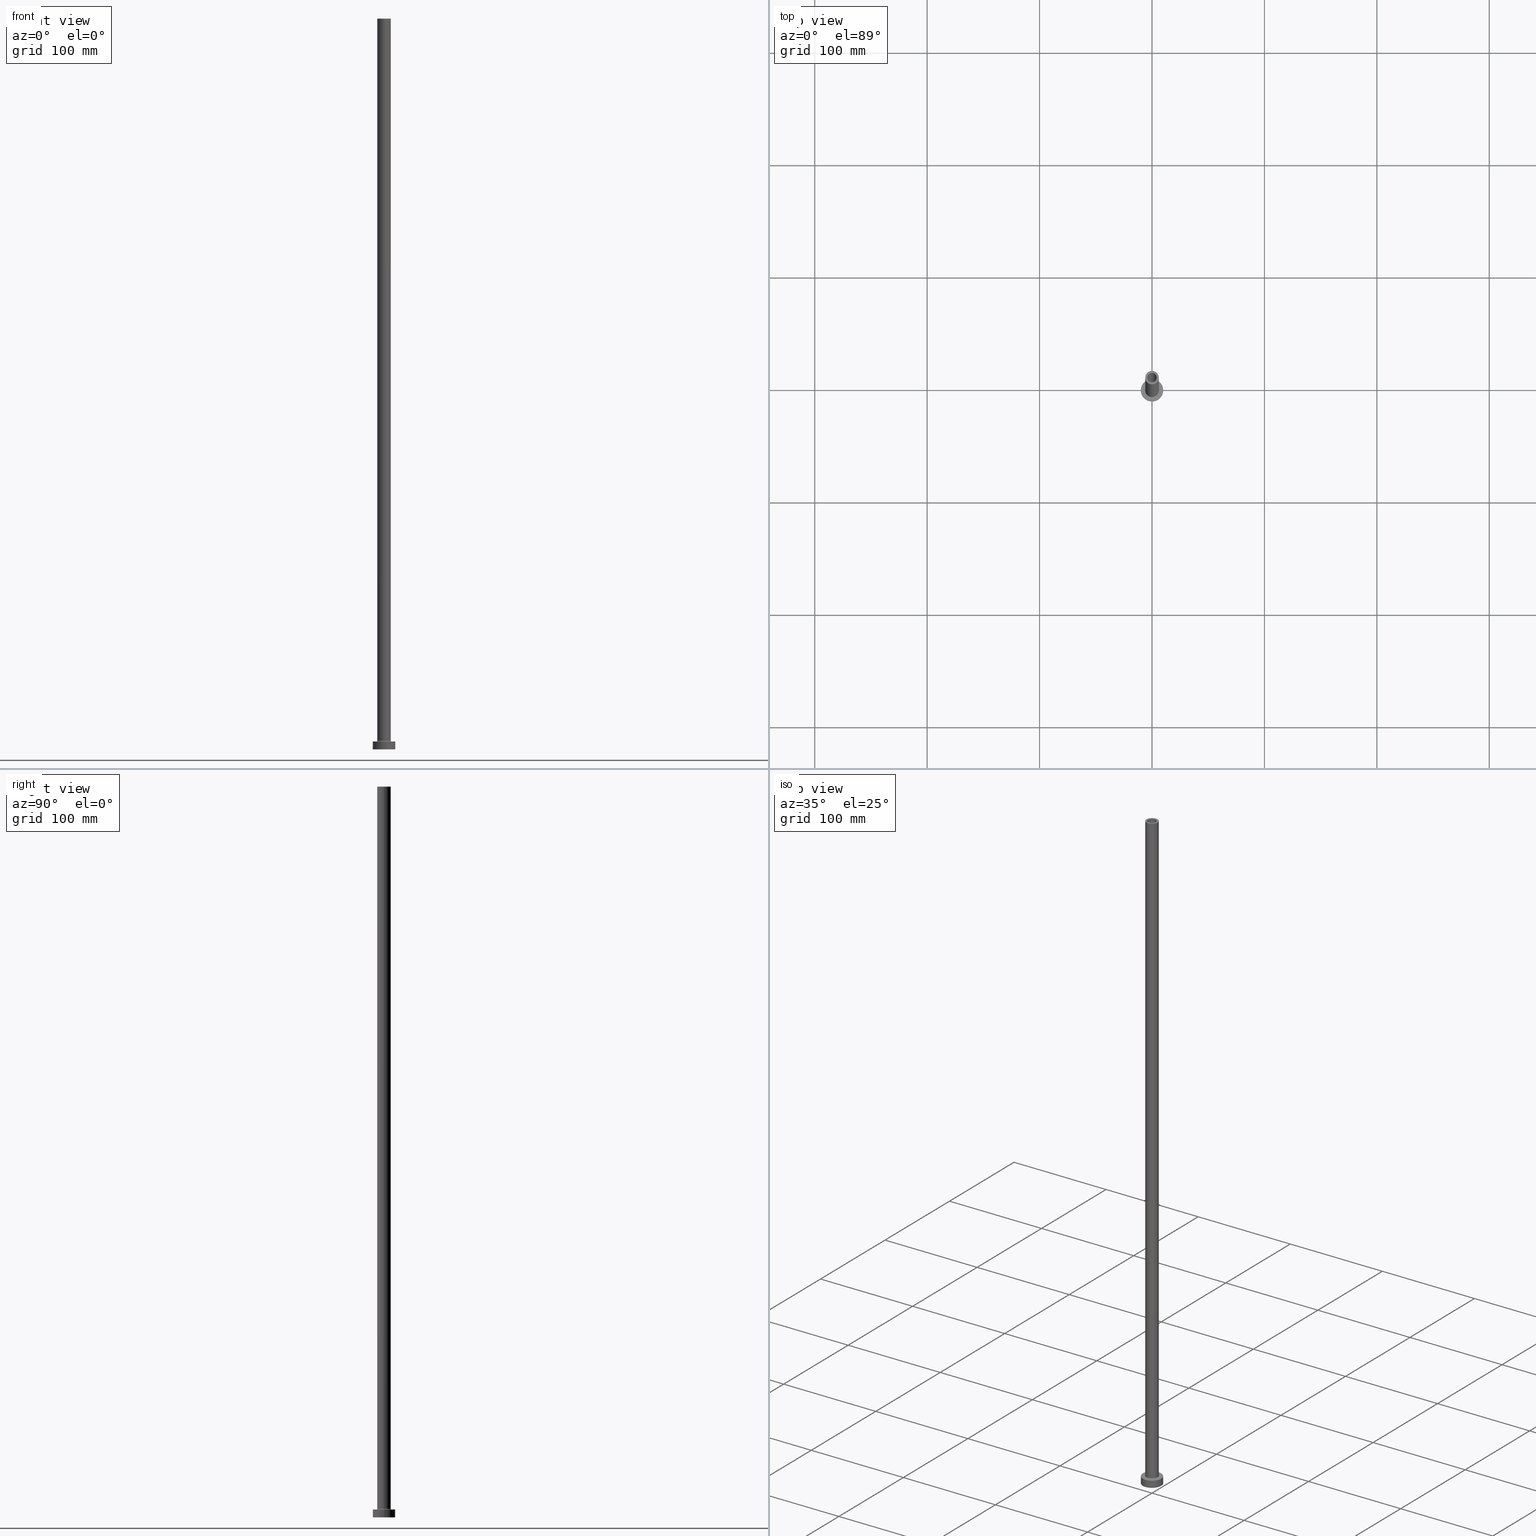
[diagram: canonical four-view strip — front | top / right | iso, engineering-drawing reading convention]
A machine part, canonical four-view strip (front | top / right | iso — engineering-drawing reading convention). The complete STEP part file that produces these views, byte-faithful:
ISO-10303-21;
HEADER;
FILE_DESCRIPTION (( 'STEP AP203' ),
    '1' );
FILE_NAME ('999e.STEP',
    '2023-02-13T11:54:58',
    ( '' ),
    ( '' ),
    'SwSTEP 2.0',
    'SolidWorks 2019',
    '' );
FILE_SCHEMA (( 'CONFIG_CONTROL_DESIGN' ));
ENDSEC;

DATA;
#1 = CIRCLE ( 'NONE', #147, 6.000000000000000888 ) ;
#2 = ORIENTED_EDGE ( 'NONE', *, *, #4, .F. ) ;
#3 = PERSON_AND_ORGANIZATION_ROLE ( 'design_supplier' ) ;
#4 = EDGE_CURVE ( 'NONE', #200, #353, #458, .T. ) ;
#5 = CARTESIAN_POINT ( 'NONE',  ( 0.000000000000000000, 0.000000000000000000, 7.700000000000040146 ) ) ;
#6 = CIRCLE ( 'NONE', #157, 10.00000000000000000 ) ;
#7 = CARTESIAN_POINT ( 'NONE',  ( -4.250000000000000000, 0.000000000000000000, 605.0000000000000000 ) ) ;
#8 = DIRECTION ( 'NONE',  ( 0.000000000000000000, 0.000000000000000000, 1.000000000000000000 ) ) ;
#9 = DIRECTION ( 'NONE',  ( 1.000000000000000000, 0.000000000000000000, 0.000000000000000000 ) ) ;
#10 = PERSON_AND_ORGANIZATION ( #359, #159 ) ;
#11 = DIRECTION ( 'NONE',  ( -1.000000000000000000, 0.000000000000000000, 0.000000000000000000 ) ) ;
#12 = AXIS2_PLACEMENT_3D ( 'NONE', #153, #115, #151 ) ;
#13 = PERSON_AND_ORGANIZATION ( #359, #159 ) ;
#14 = DIRECTION ( 'NONE',  ( 1.000000000000000000, 0.000000000000000000, 0.000000000000000000 ) ) ;
#15 = DATE_TIME_ROLE ( 'classification_date' ) ;
#16 = DIRECTION ( 'NONE',  ( -0.000000000000000000, -0.000000000000000000, -1.000000000000000000 ) ) ;
#17 = CC_DESIGN_DATE_AND_TIME_ASSIGNMENT ( #107, #251, ( #267 ) ) ;
#18 = EDGE_LOOP ( 'NONE', ( #308, #123 ) ) ;
#19 = CYLINDRICAL_SURFACE ( 'NONE', #386, 6.000000000000000888 ) ;
#20 = ORIENTED_EDGE ( 'NONE', *, *, #439, .F. ) ;
#21 = CIRCLE ( 'NONE', #255, 4.250000000000000000 ) ;
#22 = DIRECTION ( 'NONE',  ( 1.000000000000000000, 0.000000000000000000, 0.000000000000000000 ) ) ;
#23 = ORIENTED_EDGE ( 'NONE', *, *, #114, .T. ) ;
#24 = CIRCLE ( 'NONE', #395, 6.000000000000000888 ) ;
#25 = DIRECTION ( 'NONE',  ( 1.000000000000000000, 0.000000000000000000, 0.000000000000000000 ) ) ;
#26 = ORIENTED_EDGE ( 'NONE', *, *, #459, .T. ) ;
#27 = EDGE_CURVE ( 'NONE', #417, #97, #300, .T. ) ;
#28 = LINE ( 'NONE', #138, #83 ) ;
#29 = ORIENTED_EDGE ( 'NONE', *, *, #289, .F. ) ;
#30 = ADVANCED_BREP_SHAPE_REPRESENTATION ( '999e', ( #340, #204 ), #167 ) ;
#31 = VECTOR ( 'NONE', #162, 1000.000000000000000 ) ;
#32 = DIRECTION ( 'NONE',  ( 1.000000000000000000, 0.000000000000000000, 0.000000000000000000 ) ) ;
#33 = ORIENTED_EDGE ( 'NONE', *, *, #231, .T. ) ;
#34 = PERSON_AND_ORGANIZATION ( #359, #159 ) ;
#35 = ORIENTED_EDGE ( 'NONE', *, *, #47, .T. ) ;
#36 = APPROVAL_DATE_TIME ( #176, #362 ) ;
#37 = ORIENTED_EDGE ( 'NONE', *, *, #413, .F. ) ;
#38 = CIRCLE ( 'NONE', #428, 6.700000000000001066 ) ;
#39 = ORIENTED_EDGE ( 'NONE', *, *, #156, .F. ) ;
#40 = CLOSED_SHELL ( 'NONE', ( #254, #420, #128, #381, #312, #350, #64, #388, #278, #87, #285, #103, #365, #434 ) ) ;
#41 = EDGE_CURVE ( 'NONE', #56, #166, #297, .T. ) ;
#42 = DIRECTION ( 'NONE',  ( 1.000000000000000000, 0.000000000000000000, 0.000000000000000000 ) ) ;
#43 = DIRECTION ( 'NONE',  ( -1.000000000000000000, 0.000000000000000000, 0.000000000000000000 ) ) ;
#44 = AXIS2_PLACEMENT_3D ( 'NONE', #433, #332, #9 ) ;
#45 = CYLINDRICAL_SURFACE ( 'NONE', #432, 4.400000000000000355 ) ;
#46 = DIRECTION ( 'NONE',  ( 0.000000000000000000, 0.000000000000000000, 1.000000000000000000 ) ) ;
#47 = EDGE_CURVE ( 'NONE', #166, #56, #21, .T. ) ;
#48 = AXIS2_PLACEMENT_3D ( 'NONE', #391, #101, #394 ) ;
#49 = DIRECTION ( 'NONE',  ( 0.000000000000000000, 0.000000000000000000, -1.000000000000000000 ) ) ;
#50 = PERSON_AND_ORGANIZATION ( #359, #159 ) ;
#51 = DIRECTION ( 'NONE',  ( 0.000000000000000000, 0.000000000000000000, 1.000000000000000000 ) ) ;
#52 = DESIGN_CONTEXT ( 'detailed design', #239, 'design' ) ;
#53 = AXIS2_PLACEMENT_3D ( 'NONE', #117, #435, #328 ) ;
#54 = EDGE_CURVE ( 'NONE', #226, #200, #6, .T. ) ;
#55 = CYLINDRICAL_SURFACE ( 'NONE', #318, 10.00000000000000000 ) ;
#56 = VERTEX_POINT ( 'NONE', #282 ) ;
#57 = FACE_OUTER_BOUND ( 'NONE', #338, .T. ) ;
#58 = EDGE_LOOP ( 'NONE', ( #39, #382, #314, #74 ) ) ;
#59 = CARTESIAN_POINT ( 'NONE',  ( 0.000000000000000000, 0.000000000000000000, 7.000000000000000000 ) ) ;
#60 = ORIENTED_EDGE ( 'NONE', *, *, #426, .F. ) ;
#61 = CIRCLE ( 'NONE', #329, 0.7000000000000000666 ) ;
#62 = CARTESIAN_POINT ( 'NONE',  ( 6.000000000000000888, 7.347880794884120722E-16, 7.700000000000040146 ) ) ;
#63 = EDGE_LOOP ( 'NONE', ( #379, #390, #33, #29 ) ) ;
#64 = ADVANCED_FACE ( 'NONE', ( #423, #358 ), #102, .T. ) ;
#65 = EDGE_LOOP ( 'NONE', ( #317, #246, #70, #275 ) ) ;
#66 = CALENDAR_DATE ( 2023, 13, 2 ) ;
#67 = VERTEX_POINT ( 'NONE', #243 ) ;
#68 = AXIS2_PLACEMENT_3D ( 'NONE', #5, #46, #217 ) ;
#69 = DIRECTION ( 'NONE',  ( 0.000000000000000000, 0.000000000000000000, 1.000000000000000000 ) ) ;
#70 = ORIENTED_EDGE ( 'NONE', *, *, #295, .F. ) ;
#71 = MECHANICAL_CONTEXT ( 'NONE', #125, 'mechanical' ) ;
#72 = CARTESIAN_POINT ( 'NONE',  ( 0.000000000000000000, 0.000000000000000000, 605.0000000000000000 ) ) ;
#73 = CARTESIAN_POINT ( 'NONE',  ( 0.000000000000000000, 0.000000000000000000, 617.4450793488832687 ) ) ;
#74 = ORIENTED_EDGE ( 'NONE', *, *, #231, .F. ) ;
#75 = CC_DESIGN_PERSON_AND_ORGANIZATION_ASSIGNMENT ( #333, #3, ( #165 ) ) ;
#76 = FACE_OUTER_BOUND ( 'NONE', #58, .T. ) ;
#77 = DIRECTION ( 'NONE',  ( 1.000000000000000000, 0.000000000000000000, 0.000000000000000000 ) ) ;
#78 = CIRCLE ( 'NONE', #343, 6.000000000000000888 ) ;
#79 = EDGE_CURVE ( 'NONE', #206, #195, #105, .T. ) ;
#80 = CARTESIAN_POINT ( 'NONE',  ( 10.00000000000000000, 1.224646799147353256E-15, 7.000000000000000000 ) ) ;
#81 = VECTOR ( 'NONE', #421, 1000.000000000000000 ) ;
#82 = CARTESIAN_POINT ( 'NONE',  ( -6.700000000000001066, 8.205133554287267548E-16, 7.700000000000040146 ) ) ;
#83 = VECTOR ( 'NONE', #238, 1000.000000000000000 ) ;
#84 = PERSON_AND_ORGANIZATION_ROLE ( 'classification_officer' ) ;
#85 = DIRECTION ( 'NONE',  ( 0.000000000000000000, 0.000000000000000000, 1.000000000000000000 ) ) ;
#86 = EDGE_LOOP ( 'NONE', ( #91, #137 ) ) ;
#87 = ADVANCED_FACE ( 'NONE', ( #182, #402 ), #261, .T. ) ;
#88 = PRODUCT_DEFINITION_SHAPE ( 'NONE', 'NONE',  #267 ) ;
#89 = DIRECTION ( 'NONE',  ( 0.000000000000000000, 0.000000000000000000, 1.000000000000000000 ) ) ;
#90 = AXIS2_PLACEMENT_3D ( 'NONE', #222, #8, #77 ) ;
#91 = ORIENTED_EDGE ( 'NONE', *, *, #426, .T. ) ;
#92 = CARTESIAN_POINT ( 'NONE',  ( 0.000000000000000000, 0.000000000000000000, 7.700000000000040146 ) ) ;
#93 = EDGE_LOOP ( 'NONE', ( #451, #209 ) ) ;
#94 = DIRECTION ( 'NONE',  ( -0.000000000000000000, -0.000000000000000000, -1.000000000000000000 ) ) ;
#95 = ORIENTED_EDGE ( 'NONE', *, *, #27, .T. ) ;
#96 = DIRECTION ( 'NONE',  ( 1.000000000000000000, 0.000000000000000000, 0.000000000000000000 ) ) ;
#97 = VERTEX_POINT ( 'NONE', #7 ) ;
#98 = LOCAL_TIME ( 12, 54, 58.00000000000000000, #143 ) ;
#99 = DIRECTION ( 'NONE',  ( 1.000000000000000000, 0.000000000000000000, 0.000000000000000000 ) ) ;
#100 = VERTEX_POINT ( 'NONE', #363 ) ;
#101 = DIRECTION ( 'NONE',  ( 0.000000000000000000, 0.000000000000000000, 1.000000000000000000 ) ) ;
#102 = PLANE ( 'NONE',  #132 ) ;
#103 = ADVANCED_FACE ( 'NONE', ( #403 ), #45, .F. ) ;
#104 = VERTEX_POINT ( 'NONE', #148 ) ;
#105 = CIRCLE ( 'NONE', #201, 4.400000000000000355 ) ;
#106 = DIRECTION ( 'NONE',  ( 0.000000000000000000, 0.000000000000000000, 1.000000000000000000 ) ) ;
#107 = DATE_AND_TIME ( #287, #98 ) ;
#108 = DIRECTION ( 'NONE',  ( 1.000000000000000000, 0.000000000000000000, -0.000000000000000000 ) ) ;
#109 = CC_DESIGN_PERSON_AND_ORGANIZATION_ASSIGNMENT ( #352, #321, ( #267 ) ) ;
#110 = CARTESIAN_POINT ( 'NONE',  ( 4.400000000000000355, 5.388445916248354013E-16, 0.000000000000000000 ) ) ;
#111 = CIRCLE ( 'NONE', #116, 6.700000000000001066 ) ;
#112 = APPROVAL_PERSON_ORGANIZATION ( #50, #401, #218 ) ;
#113 = DIRECTION ( 'NONE',  ( 0.000000000000000000, 0.000000000000000000, 1.000000000000000000 ) ) ;
#114 = EDGE_CURVE ( 'NONE', #211, #387, #436, .T. ) ;
#115 = DIRECTION ( 'NONE',  ( 0.000000000000000000, 0.000000000000000000, 1.000000000000000000 ) ) ;
#116 = AXIS2_PLACEMENT_3D ( 'NONE', #337, #94, #441 ) ;
#117 = CARTESIAN_POINT ( 'NONE',  ( 6.700000000000001066, 0.000000000000000000, 7.700000000000040146 ) ) ;
#118 = CALENDAR_DATE ( 2023, 13, 2 ) ;
#119 = DIRECTION ( 'NONE',  ( 0.000000000000000000, 0.000000000000000000, 1.000000000000000000 ) ) ;
#120 = CC_DESIGN_DATE_AND_TIME_ASSIGNMENT ( #155, #15, ( #133 ) ) ;
#121 = UNCERTAINTY_MEASURE_WITH_UNIT (LENGTH_MEASURE( 1.000000000000000082E-05 ), #456, 'distance_accuracy_value', 'NONE');
#122 = CARTESIAN_POINT ( 'NONE',  ( 0.000000000000000000, 0.000000000000000000, 605.0000000000000000 ) ) ;
#123 = ORIENTED_EDGE ( 'NONE', *, *, #223, .T. ) ;
#124 = AXIS2_PLACEMENT_3D ( 'NONE', #72, #139, #286 ) ;
#125 = APPLICATION_CONTEXT ( 'configuration controlled 3d designs of mechanical parts and assemblies' ) ;
#126 = DIRECTION ( 'NONE',  ( -0.000000000000000000, -0.000000000000000000, -1.000000000000000000 ) ) ;
#127 = ORIENTED_EDGE ( 'NONE', *, *, #4, .T. ) ;
#128 = ADVANCED_FACE ( 'NONE', ( #76 ), #367, .F. ) ;
#129 = CARTESIAN_POINT ( 'NONE',  ( 0.000000000000000000, 0.000000000000000000, 0.000000000000000000 ) ) ;
#130 = ORIENTED_EDGE ( 'NONE', *, *, #213, .T. ) ;
#131 = APPROVAL_STATUS ( 'not_yet_approved' ) ;
#132 = AXIS2_PLACEMENT_3D ( 'NONE', #461, #429, #108 ) ;
#133 = SECURITY_CLASSIFICATION ( '', '', #438 ) ;
#134 = PERSON_AND_ORGANIZATION_ROLE ( 'design_owner' ) ;
#135 = CC_DESIGN_PERSON_AND_ORGANIZATION_ASSIGNMENT ( #450, #134, ( #431 ) ) ;
#136 = ORIENTED_EDGE ( 'NONE', *, *, #146, .F. ) ;
#137 = ORIENTED_EDGE ( 'NONE', *, *, #413, .T. ) ;
#138 = CARTESIAN_POINT ( 'NONE',  ( -4.250000000000000000, 0.000000000000000000, 650.0000000000000000 ) ) ;
#139 = DIRECTION ( 'NONE',  ( 0.000000000000000000, 0.000000000000000000, 1.000000000000000000 ) ) ;
#140 = CIRCLE ( 'NONE', #90, 4.400000000000000355 ) ;
#141 = LOCAL_TIME ( 12, 54, 58.00000000000000000, #268 ) ;
#142 = AXIS2_PLACEMENT_3D ( 'NONE', #59, #126, #383 ) ;
#143 = COORDINATED_UNIVERSAL_TIME_OFFSET ( 1, 0, .AHEAD. ) ;
#144 = CIRCLE ( 'NONE', #247, 10.00000000000000000 ) ;
#145 = ORIENTED_EDGE ( 'NONE', *, *, #302, .T. ) ;
#146 = EDGE_CURVE ( 'NONE', #407, #206, #220, .T. ) ;
#147 = AXIS2_PLACEMENT_3D ( 'NONE', #422, #357, #32 ) ;
#148 = CARTESIAN_POINT ( 'NONE',  ( 4.400000000000000355, 5.388445916248354013E-16, 605.0000000000000000 ) ) ;
#149 = APPROVAL_DATE_TIME ( #410, #260 ) ;
#150 = CARTESIAN_POINT ( 'NONE',  ( 0.000000000000000000, 0.000000000000000000, 7.700000000000040146 ) ) ;
#151 = DIRECTION ( 'NONE',  ( 1.000000000000000000, 0.000000000000000000, 0.000000000000000000 ) ) ;
#152 = CC_DESIGN_PERSON_AND_ORGANIZATION_ASSIGNMENT ( #10, #84, ( #133 ) ) ;
#153 = CARTESIAN_POINT ( 'NONE',  ( 0.000000000000000000, 0.000000000000000000, 7.700000000000040146 ) ) ;
#154 = DIRECTION ( 'NONE',  ( 0.000000000000000000, 0.000000000000000000, 1.000000000000000000 ) ) ;
#155 = DATE_AND_TIME ( #405, #324 ) ;
#156 = EDGE_CURVE ( 'NONE', #387, #393, #78, .T. ) ;
#157 = AXIS2_PLACEMENT_3D ( 'NONE', #252, #175, #455 ) ;
#158 = CARTESIAN_POINT ( 'NONE',  ( -4.400000000000000355, 0.000000000000000000, 605.0000000000000000 ) ) ;
#159 = ORGANIZATION ( 'NEUR�EN�', 'NEUR�EN�', '' ) ;
#160 = DIRECTION ( 'NONE',  ( 0.000000000000000000, 0.000000000000000000, -1.000000000000000000 ) ) ;
#161 = ORIENTED_EDGE ( 'NONE', *, *, #370, .F. ) ;
#162 = DIRECTION ( 'NONE',  ( 0.000000000000000000, 0.000000000000000000, -1.000000000000000000 ) ) ;
#163 = EDGE_LOOP ( 'NONE', ( #409, #233, #345, #271 ) ) ;
#164 = CARTESIAN_POINT ( 'NONE',  ( 0.000000000000000000, 0.000000000000000000, 605.0000000000000000 ) ) ;
#165 = PRODUCT_DEFINITION_FORMATION_WITH_SPECIFIED_SOURCE ( 'LIBOVOLN�', '', #431, .NOT_KNOWN. ) ;
#166 = VERTEX_POINT ( 'NONE', #327 ) ;
#167 =( GEOMETRIC_REPRESENTATION_CONTEXT ( 3 ) GLOBAL_UNCERTAINTY_ASSIGNED_CONTEXT ( ( #121 ) ) GLOBAL_UNIT_ASSIGNED_CONTEXT ( ( #456, #281, #242 ) ) REPRESENTATION_CONTEXT ( 'NONE', 'WORKASPACE' ) );
#168 = DIRECTION ( 'NONE',  ( 1.000000000000000000, 0.000000000000000000, -0.000000000000000000 ) ) ;
#169 = ORIENTED_EDGE ( 'NONE', *, *, #170, .T. ) ;
#170 = EDGE_CURVE ( 'NONE', #407, #104, #140, .T. ) ;
#171 = CARTESIAN_POINT ( 'NONE',  ( 0.000000000000000000, 0.000000000000000000, 650.0000000000000000 ) ) ;
#172 = CIRCLE ( 'NONE', #228, 4.250000000000000000 ) ;
#173 = APPROVAL_PERSON_ORGANIZATION ( #397, #260, #325 ) ;
#174 = CARTESIAN_POINT ( 'NONE',  ( 0.000000000000000000, 0.000000000000000000, 0.000000000000000000 ) ) ;
#175 = DIRECTION ( 'NONE',  ( 0.000000000000000000, 0.000000000000000000, 1.000000000000000000 ) ) ;
#176 = DATE_AND_TIME ( #66, #280 ) ;
#177 = ORIENTED_EDGE ( 'NONE', *, *, #370, .T. ) ;
#178 = COORDINATED_UNIVERSAL_TIME_OFFSET ( 1, 0, .AHEAD. ) ;
#179 = ORIENTED_EDGE ( 'NONE', *, *, #192, .T. ) ;
#180 = AXIS2_PLACEMENT_3D ( 'NONE', #256, #154, #437 ) ;
#181 = PRODUCT_RELATED_PRODUCT_CATEGORY ( 'detail', '', ( #431 ) ) ;
#182 = FACE_BOUND ( 'NONE', #198, .T. ) ;
#183 = DIRECTION ( 'NONE',  ( -1.000000000000000000, 0.000000000000000000, 0.000000000000000000 ) ) ;
#184 = CC_DESIGN_PERSON_AND_ORGANIZATION_ASSIGNMENT ( #13, #190, ( #165 ) ) ;
#185 = CARTESIAN_POINT ( 'NONE',  ( 0.000000000000000000, 0.000000000000000000, 650.0000000000000000 ) ) ;
#186 = TOROIDAL_SURFACE ( 'NONE', #322, 6.700000000000001066, 0.6999999999999999556 ) ;
#187 = CARTESIAN_POINT ( 'NONE',  ( 0.000000000000000000, 0.000000000000000000, 617.4450793488832687 ) ) ;
#188 = CIRCLE ( 'NONE', #48, 4.400000000000000355 ) ;
#189 = DIRECTION ( 'NONE',  ( -0.000000000000000000, -0.000000000000000000, -1.000000000000000000 ) ) ;
#190 = PERSON_AND_ORGANIZATION_ROLE ( 'creator' ) ;
#191 = FACE_OUTER_BOUND ( 'NONE', #320, .T. ) ;
#192 = EDGE_CURVE ( 'NONE', #393, #387, #193, .T. ) ;
#193 = CIRCLE ( 'NONE', #12, 6.000000000000000888 ) ;
#194 = CARTESIAN_POINT ( 'NONE',  ( 6.000000000000000888, 7.347880794884120722E-16, 650.0000000000000000 ) ) ;
#195 = VERTEX_POINT ( 'NONE', #110 ) ;
#196 = CARTESIAN_POINT ( 'NONE',  ( 0.000000000000000000, 0.000000000000000000, 650.0000000000000000 ) ) ;
#197 = AXIS2_PLACEMENT_3D ( 'NONE', #205, #85, #96 ) ;
#198 = EDGE_LOOP ( 'NONE', ( #347, #425 ) ) ;
#199 = FACE_OUTER_BOUND ( 'NONE', #235, .T. ) ;
#200 = VERTEX_POINT ( 'NONE', #80 ) ;
#201 = AXIS2_PLACEMENT_3D ( 'NONE', #398, #457, #215 ) ;
#202 = LINE ( 'NONE', #301, #245 ) ;
#203 = ORIENTED_EDGE ( 'NONE', *, *, #346, .F. ) ;
#204 = AXIS2_PLACEMENT_3D ( 'NONE', #174, #210, #25 ) ;
#205 = CARTESIAN_POINT ( 'NONE',  ( 0.000000000000000000, 0.000000000000000000, 0.000000000000000000 ) ) ;
#206 = VERTEX_POINT ( 'NONE', #258 ) ;
#207 = EDGE_CURVE ( 'NONE', #226, #288, #291, .T. ) ;
#208 = CYLINDRICAL_SURFACE ( 'NONE', #263, 4.250000000000000000 ) ;
#209 = ORIENTED_EDGE ( 'NONE', *, *, #289, .T. ) ;
#210 = DIRECTION ( 'NONE',  ( 0.000000000000000000, 0.000000000000000000, 1.000000000000000000 ) ) ;
#211 = VERTEX_POINT ( 'NONE', #404 ) ;
#212 = ORIENTED_EDGE ( 'NONE', *, *, #295, .T. ) ;
#213 = EDGE_CURVE ( 'NONE', #195, #206, #351, .T. ) ;
#214 = CARTESIAN_POINT ( 'NONE',  ( 0.000000000000000000, 0.000000000000000000, 650.0000000000000000 ) ) ;
#215 = DIRECTION ( 'NONE',  ( 1.000000000000000000, 0.000000000000000000, 0.000000000000000000 ) ) ;
#216 = APPROVAL_PERSON_ORGANIZATION ( #34, #362, #313 ) ;
#217 = DIRECTION ( 'NONE',  ( 1.000000000000000000, 0.000000000000000000, 0.000000000000000000 ) ) ;
#218 = APPROVAL_ROLE ( '' ) ;
#219 = CARTESIAN_POINT ( 'NONE',  ( -4.400000000000000355, 0.000000000000000000, 617.4450793488832687 ) ) ;
#220 = LINE ( 'NONE', #219, #292 ) ;
#221 = CARTESIAN_POINT ( 'NONE',  ( 0.000000000000000000, 0.000000000000000000, 650.0000000000000000 ) ) ;
#222 = CARTESIAN_POINT ( 'NONE',  ( 0.000000000000000000, 0.000000000000000000, 605.0000000000000000 ) ) ;
#223 = EDGE_CURVE ( 'NONE', #200, #226, #276, .T. ) ;
#224 = COORDINATED_UNIVERSAL_TIME_OFFSET ( 1, 0, .AHEAD. ) ;
#225 = DIRECTION ( 'NONE',  ( -1.000000000000000000, 0.000000000000000000, 0.000000000000000000 ) ) ;
#226 = VERTEX_POINT ( 'NONE', #364 ) ;
#227 = SHAPE_DEFINITION_REPRESENTATION ( #88, #30 ) ;
#228 = AXIS2_PLACEMENT_3D ( 'NONE', #164, #89, #22 ) ;
#229 = DIRECTION ( 'NONE',  ( -0.000000000000000000, -0.000000000000000000, -1.000000000000000000 ) ) ;
#230 = ORIENTED_EDGE ( 'NONE', *, *, #331, .F. ) ;
#231 = EDGE_CURVE ( 'NONE', #393, #100, #335, .T. ) ;
#232 = CARTESIAN_POINT ( 'NONE',  ( -10.00000000000000000, 0.000000000000000000, 0.000000000000000000 ) ) ;
#233 = ORIENTED_EDGE ( 'NONE', *, *, #439, .T. ) ;
#234 = PLANE ( 'NONE',  #377 ) ;
#235 = EDGE_LOOP ( 'NONE', ( #237, #20 ) ) ;
#236 = FACE_OUTER_BOUND ( 'NONE', #311, .T. ) ;
#237 = ORIENTED_EDGE ( 'NONE', *, *, #170, .F. ) ;
#238 = DIRECTION ( 'NONE',  ( 0.000000000000000000, 0.000000000000000000, -1.000000000000000000 ) ) ;
#239 = APPLICATION_CONTEXT ( 'configuration controlled 3d designs of mechanical parts and assemblies' ) ;
#240 = ORIENTED_EDGE ( 'NONE', *, *, #79, .F. ) ;
#241 = CIRCLE ( 'NONE', #197, 10.00000000000000000 ) ;
#242 =( NAMED_UNIT ( * ) SI_UNIT ( $, .STERADIAN. ) SOLID_ANGLE_UNIT ( ) );
#243 = CARTESIAN_POINT ( 'NONE',  ( -6.700000000000001066, 8.205133554287267548E-16, 7.000000000000020428 ) ) ;
#244 = CYLINDRICAL_SURFACE ( 'NONE', #446, 4.400000000000000355 ) ;
#245 = VECTOR ( 'NONE', #160, 1000.000000000000000 ) ;
#246 = ORIENTED_EDGE ( 'NONE', *, *, #331, .T. ) ;
#247 = AXIS2_PLACEMENT_3D ( 'NONE', #283, #69, #99 ) ;
#248 = EDGE_CURVE ( 'NONE', #387, #67, #61, .T. ) ;
#249 = CARTESIAN_POINT ( 'NONE',  ( 0.000000000000000000, 0.000000000000000000, 650.0000000000000000 ) ) ;
#250 = DIRECTION ( 'NONE',  ( 0.000000000000000000, 0.000000000000000000, 1.000000000000000000 ) ) ;
#251 = DATE_TIME_ROLE ( 'creation_date' ) ;
#252 = CARTESIAN_POINT ( 'NONE',  ( 0.000000000000000000, 0.000000000000000000, 7.000000000000000000 ) ) ;
#253 = DIRECTION ( 'NONE',  ( 1.224646799147353207E-16, 1.000000000000000000, -0.000000000000000000 ) ) ;
#254 = ADVANCED_FACE ( 'NONE', ( #369 ), #400, .F. ) ;
#255 = AXIS2_PLACEMENT_3D ( 'NONE', #214, #250, #396 ) ;
#256 = CARTESIAN_POINT ( 'NONE',  ( 0.000000000000000000, 0.000000000000000000, 7.000000000000000000 ) ) ;
#257 = DIRECTION ( 'NONE',  ( 1.000000000000000000, 0.000000000000000000, -0.000000000000000000 ) ) ;
#258 = CARTESIAN_POINT ( 'NONE',  ( -4.400000000000000355, 0.000000000000000000, 0.000000000000000000 ) ) ;
#259 = VECTOR ( 'NONE', #189, 1000.000000000000000 ) ;
#260 = APPROVAL ( #131, 'NEUR�EN�' ) ;
#261 = PLANE ( 'NONE',  #269 ) ;
#262 = DATE_AND_TIME ( #118, #141 ) ;
#263 = AXIS2_PLACEMENT_3D ( 'NONE', #249, #419, #454 ) ;
#264 = DIRECTION ( 'NONE',  ( 1.000000000000000000, 0.000000000000000000, 0.000000000000000000 ) ) ;
#265 = CARTESIAN_POINT ( 'NONE',  ( 10.00000000000000000, 1.224646799147353256E-15, 0.000000000000000000 ) ) ;
#266 = ORIENTED_EDGE ( 'NONE', *, *, #114, .F. ) ;
#267 = PRODUCT_DEFINITION ( 'NEZN�M�', '', #165, #52 ) ;
#268 = COORDINATED_UNIVERSAL_TIME_OFFSET ( 1, 0, .AHEAD. ) ;
#269 = AXIS2_PLACEMENT_3D ( 'NONE', #221, #366, #257 ) ;
#270 = DIRECTION ( 'NONE',  ( 1.000000000000000000, 0.000000000000000000, -0.000000000000000000 ) ) ;
#271 = ORIENTED_EDGE ( 'NONE', *, *, #79, .T. ) ;
#272 = CARTESIAN_POINT ( 'NONE',  ( 0.000000000000000000, 0.000000000000000000, 7.000000000000000000 ) ) ;
#273 = ORIENTED_EDGE ( 'NONE', *, *, #207, .F. ) ;
#274 = CARTESIAN_POINT ( 'NONE',  ( 6.000000000000000888, 7.347880794884120722E-16, 650.0000000000000000 ) ) ;
#275 = ORIENTED_EDGE ( 'NONE', *, *, #449, .F. ) ;
#276 = CIRCLE ( 'NONE', #180, 10.00000000000000000 ) ;
#277 = FACE_OUTER_BOUND ( 'NONE', #444, .T. ) ;
#278 = ADVANCED_FACE ( 'NONE', ( #191 ), #290, .T. ) ;
#279 = EDGE_LOOP ( 'NONE', ( #37, #177, #179, #266 ) ) ;
#280 = LOCAL_TIME ( 12, 54, 58.00000000000000000, #178 ) ;
#281 =( NAMED_UNIT ( * ) PLANE_ANGLE_UNIT ( ) SI_UNIT ( $, .RADIAN. ) );
#282 = CARTESIAN_POINT ( 'NONE',  ( -4.250000000000000000, 0.000000000000000000, 650.0000000000000000 ) ) ;
#283 = CARTESIAN_POINT ( 'NONE',  ( 0.000000000000000000, 0.000000000000000000, 0.000000000000000000 ) ) ;
#284 = ORIENTED_EDGE ( 'NONE', *, *, #27, .F. ) ;
#285 = ADVANCED_FACE ( 'NONE', ( #380 ), #186, .F. ) ;
#286 = DIRECTION ( 'NONE',  ( 1.000000000000000000, 0.000000000000000000, 0.000000000000000000 ) ) ;
#287 = CALENDAR_DATE ( 2023, 13, 2 ) ;
#288 = VERTEX_POINT ( 'NONE', #232 ) ;
#289 = EDGE_CURVE ( 'NONE', #67, #100, #111, .T. ) ;
#290 = CYLINDRICAL_SURFACE ( 'NONE', #453, 6.000000000000000888 ) ;
#291 = LINE ( 'NONE', #368, #259 ) ;
#292 = VECTOR ( 'NONE', #296, 1000.000000000000000 ) ;
#293 = DIRECTION ( 'NONE',  ( -1.000000000000000000, 1.224646799147353454E-16, 0.000000000000000000 ) ) ;
#294 = DIRECTION ( 'NONE',  ( -0.000000000000000000, -0.000000000000000000, -1.000000000000000000 ) ) ;
#295 = EDGE_CURVE ( 'NONE', #97, #417, #172, .T. ) ;
#296 = DIRECTION ( 'NONE',  ( 0.000000000000000000, 0.000000000000000000, -1.000000000000000000 ) ) ;
#297 = CIRCLE ( 'NONE', #315, 4.250000000000000000 ) ;
#298 = CALENDAR_DATE ( 2023, 13, 2 ) ;
#299 = CARTESIAN_POINT ( 'NONE',  ( 0.000000000000000000, 0.000000000000000000, 650.0000000000000000 ) ) ;
#300 = CIRCLE ( 'NONE', #124, 4.250000000000000000 ) ;
#301 = CARTESIAN_POINT ( 'NONE',  ( 4.250000000000000000, 5.204748896376250699E-16, 650.0000000000000000 ) ) ;
#302 = EDGE_CURVE ( 'NONE', #104, #195, #307, .T. ) ;
#303 = COORDINATED_UNIVERSAL_TIME_OFFSET ( 1, 0, .AHEAD. ) ;
#304 = FACE_OUTER_BOUND ( 'NONE', #279, .T. ) ;
#305 = ORIENTED_EDGE ( 'NONE', *, *, #207, .T. ) ;
#306 = LOCAL_TIME ( 12, 54, 58.00000000000000000, #303 ) ;
#307 = LINE ( 'NONE', #378, #31 ) ;
#308 = ORIENTED_EDGE ( 'NONE', *, *, #54, .T. ) ;
#309 = LINE ( 'NONE', #274, #310 ) ;
#310 = VECTOR ( 'NONE', #229, 1000.000000000000000 ) ;
#311 = EDGE_LOOP ( 'NONE', ( #203, #442 ) ) ;
#312 = ADVANCED_FACE ( 'NONE', ( #440 ), #445, .T. ) ;
#313 = APPROVAL_ROLE ( '' ) ;
#314 = ORIENTED_EDGE ( 'NONE', *, *, #336, .F. ) ;
#315 = AXIS2_PLACEMENT_3D ( 'NONE', #171, #106, #326 ) ;
#316 = CC_DESIGN_APPROVAL ( #260, ( #165 ) ) ;
#317 = ORIENTED_EDGE ( 'NONE', *, *, #41, .T. ) ;
#318 = AXIS2_PLACEMENT_3D ( 'NONE', #414, #443, #225 ) ;
#319 = ORIENTED_EDGE ( 'NONE', *, *, #54, .F. ) ;
#320 = EDGE_LOOP ( 'NONE', ( #161, #60, #23, #448 ) ) ;
#321 = PERSON_AND_ORGANIZATION_ROLE ( 'creator' ) ;
#322 = AXIS2_PLACEMENT_3D ( 'NONE', #92, #408, #14 ) ;
#323 = CARTESIAN_POINT ( 'NONE',  ( 10.00000000000000000, 1.224646799147353256E-15, 7.000000000000000000 ) ) ;
#324 = LOCAL_TIME ( 12, 54, 58.00000000000000000, #224 ) ;
#325 = APPROVAL_ROLE ( '' ) ;
#326 = DIRECTION ( 'NONE',  ( 1.000000000000000000, 0.000000000000000000, 0.000000000000000000 ) ) ;
#327 = CARTESIAN_POINT ( 'NONE',  ( 4.250000000000000000, 5.204748896376250699E-16, 650.0000000000000000 ) ) ;
#328 = DIRECTION ( 'NONE',  ( 0.000000000000000000, 0.000000000000000000, -1.000000000000000000 ) ) ;
#329 = AXIS2_PLACEMENT_3D ( 'NONE', #82, #253, #293 ) ;
#330 = CARTESIAN_POINT ( 'NONE',  ( -6.000000000000000888, 0.000000000000000000, 650.0000000000000000 ) ) ;
#331 = EDGE_CURVE ( 'NONE', #166, #417, #202, .T. ) ;
#332 = DIRECTION ( 'NONE',  ( -0.000000000000000000, -0.000000000000000000, -1.000000000000000000 ) ) ;
#333 = PERSON_AND_ORGANIZATION ( #359, #159 ) ;
#334 = DIRECTION ( 'NONE',  ( 0.000000000000000000, 0.000000000000000000, -1.000000000000000000 ) ) ;
#335 = CIRCLE ( 'NONE', #53, 0.7000000000000000666 ) ;
#336 = EDGE_CURVE ( 'NONE', #100, #67, #38, .T. ) ;
#337 = CARTESIAN_POINT ( 'NONE',  ( 0.000000000000000000, 0.000000000000000000, 7.000000000000000000 ) ) ;
#338 = EDGE_LOOP ( 'NONE', ( #2, #319, #305, #349 ) ) ;
#339 = PLANE ( 'NONE',  #355 ) ;
#340 = MANIFOLD_SOLID_BREP ( 'Odebrat vysunut�m4', #40 ) ;
#341 = DIRECTION ( 'NONE',  ( 0.000000000000000000, 0.000000000000000000, 1.000000000000000000 ) ) ;
#342 = ORIENTED_EDGE ( 'NONE', *, *, #223, .F. ) ;
#343 = AXIS2_PLACEMENT_3D ( 'NONE', #150, #113, #42 ) ;
#344 = DIRECTION ( 'NONE',  ( -0.000000000000000000, -0.000000000000000000, -1.000000000000000000 ) ) ;
#345 = ORIENTED_EDGE ( 'NONE', *, *, #146, .T. ) ;
#346 = EDGE_CURVE ( 'NONE', #288, #353, #241, .T. ) ;
#347 = ORIENTED_EDGE ( 'NONE', *, *, #41, .F. ) ;
#348 = DIRECTION ( 'NONE',  ( -1.000000000000000000, 0.000000000000000000, 0.000000000000000000 ) ) ;
#349 = ORIENTED_EDGE ( 'NONE', *, *, #346, .T. ) ;
#350 = ADVANCED_FACE ( 'NONE', ( #57 ), #55, .T. ) ;
#351 = CIRCLE ( 'NONE', #44, 4.400000000000000355 ) ;
#352 = PERSON_AND_ORGANIZATION ( #359, #159 ) ;
#353 = VERTEX_POINT ( 'NONE', #265 ) ;
#354 = APPLICATION_PROTOCOL_DEFINITION ( 'international standard', 'config_control_design', 1994, #239 ) ;
#355 = AXIS2_PLACEMENT_3D ( 'NONE', #129, #51, #270 ) ;
#356 = EDGE_LOOP ( 'NONE', ( #212, #95 ) ) ;
#357 = DIRECTION ( 'NONE',  ( 0.000000000000000000, 0.000000000000000000, 1.000000000000000000 ) ) ;
#358 = FACE_OUTER_BOUND ( 'NONE', #18, .T. ) ;
#359 = PERSON ( 'NEUR�EN�', 'NEUR�EN�', 'NEUR�EN�', ('NEUR�EN�'), ('NEUR�EN�'), ('NEUR�EN�') ) ;
#360 = APPROVAL_STATUS ( 'not_yet_approved' ) ;
#361 = EDGE_LOOP ( 'NONE', ( #240, #384 ) ) ;
#362 = APPROVAL ( #460, 'NEUR�EN�' ) ;
#363 = CARTESIAN_POINT ( 'NONE',  ( 6.700000000000001066, 0.000000000000000000, 7.000000000000020428 ) ) ;
#364 = CARTESIAN_POINT ( 'NONE',  ( -10.00000000000000000, 0.000000000000000000, 7.000000000000000000 ) ) ;
#365 = ADVANCED_FACE ( 'NONE', ( #372, #199 ), #234, .F. ) ;
#366 = DIRECTION ( 'NONE',  ( 0.000000000000000000, 0.000000000000000000, 1.000000000000000000 ) ) ;
#367 = TOROIDAL_SURFACE ( 'NONE', #68, 6.700000000000001066, 0.6999999999999999556 ) ;
#368 = CARTESIAN_POINT ( 'NONE',  ( -10.00000000000000000, 0.000000000000000000, 7.000000000000000000 ) ) ;
#369 = FACE_OUTER_BOUND ( 'NONE', #65, .T. ) ;
#370 = EDGE_CURVE ( 'NONE', #415, #393, #309, .T. ) ;
#371 = APPROVAL_DATE_TIME ( #262, #401 ) ;
#372 = FACE_BOUND ( 'NONE', #356, .T. ) ;
#373 = AXIS2_PLACEMENT_3D ( 'NONE', #430, #49, #43 ) ;
#374 = CC_DESIGN_APPROVAL ( #401, ( #133 ) ) ;
#375 = CARTESIAN_POINT ( 'NONE',  ( -6.000000000000000888, 0.000000000000000000, 7.700000000000040146 ) ) ;
#376 = EDGE_LOOP ( 'NONE', ( #342, #127, #26, #273 ) ) ;
#377 = AXIS2_PLACEMENT_3D ( 'NONE', #122, #341, #168 ) ;
#378 = CARTESIAN_POINT ( 'NONE',  ( 4.400000000000000355, 5.388445916248354013E-16, 617.4450793488832687 ) ) ;
#379 = ORIENTED_EDGE ( 'NONE', *, *, #248, .F. ) ;
#380 = FACE_OUTER_BOUND ( 'NONE', #63, .T. ) ;
#381 = ADVANCED_FACE ( 'NONE', ( #304 ), #19, .T. ) ;
#382 = ORIENTED_EDGE ( 'NONE', *, *, #248, .T. ) ;
#383 = DIRECTION ( 'NONE',  ( -1.000000000000000000, 0.000000000000000000, 0.000000000000000000 ) ) ;
#384 = ORIENTED_EDGE ( 'NONE', *, *, #213, .F. ) ;
#385 = DIRECTION ( 'NONE',  ( 0.000000000000000000, 0.000000000000000000, -1.000000000000000000 ) ) ;
#386 = AXIS2_PLACEMENT_3D ( 'NONE', #196, #16, #447 ) ;
#387 = VERTEX_POINT ( 'NONE', #375 ) ;
#388 = ADVANCED_FACE ( 'NONE', ( #416, #236 ), #339, .F. ) ;
#389 = APPLICATION_PROTOCOL_DEFINITION ( 'international standard', 'config_control_design', 1994, #125 ) ;
#390 = ORIENTED_EDGE ( 'NONE', *, *, #192, .F. ) ;
#391 = CARTESIAN_POINT ( 'NONE',  ( 0.000000000000000000, 0.000000000000000000, 605.0000000000000000 ) ) ;
#392 = CC_DESIGN_SECURITY_CLASSIFICATION ( #133, ( #165 ) ) ;
#393 = VERTEX_POINT ( 'NONE', #62 ) ;
#394 = DIRECTION ( 'NONE',  ( 1.000000000000000000, 0.000000000000000000, 0.000000000000000000 ) ) ;
#395 = AXIS2_PLACEMENT_3D ( 'NONE', #299, #119, #264 ) ;
#396 = DIRECTION ( 'NONE',  ( 1.000000000000000000, 0.000000000000000000, 0.000000000000000000 ) ) ;
#397 = PERSON_AND_ORGANIZATION ( #359, #159 ) ;
#398 = CARTESIAN_POINT ( 'NONE',  ( 0.000000000000000000, 0.000000000000000000, 0.000000000000000000 ) ) ;
#399 = DIRECTION ( 'NONE',  ( -0.000000000000000000, -0.000000000000000000, -1.000000000000000000 ) ) ;
#400 = CYLINDRICAL_SURFACE ( 'NONE', #373, 4.250000000000000000 ) ;
#401 = APPROVAL ( #360, 'NEUR�EN�' ) ;
#402 = FACE_OUTER_BOUND ( 'NONE', #86, .T. ) ;
#403 = FACE_OUTER_BOUND ( 'NONE', #163, .T. ) ;
#404 = CARTESIAN_POINT ( 'NONE',  ( -6.000000000000000888, 0.000000000000000000, 650.0000000000000000 ) ) ;
#405 = CALENDAR_DATE ( 2023, 13, 2 ) ;
#406 = DIRECTION ( 'NONE',  ( 1.000000000000000000, 0.000000000000000000, 0.000000000000000000 ) ) ;
#407 = VERTEX_POINT ( 'NONE', #158 ) ;
#408 = DIRECTION ( 'NONE',  ( 0.000000000000000000, 0.000000000000000000, 1.000000000000000000 ) ) ;
#409 = ORIENTED_EDGE ( 'NONE', *, *, #302, .F. ) ;
#410 = DATE_AND_TIME ( #298, #306 ) ;
#411 = CARTESIAN_POINT ( 'NONE',  ( 4.250000000000000000, 5.204748896376250699E-16, 605.0000000000000000 ) ) ;
#412 = EDGE_LOOP ( 'NONE', ( #169, #145, #130, #136 ) ) ;
#413 = EDGE_CURVE ( 'NONE', #415, #211, #24, .T. ) ;
#414 = CARTESIAN_POINT ( 'NONE',  ( 0.000000000000000000, 0.000000000000000000, 7.000000000000000000 ) ) ;
#415 = VERTEX_POINT ( 'NONE', #194 ) ;
#416 = FACE_BOUND ( 'NONE', #361, .T. ) ;
#417 = VERTEX_POINT ( 'NONE', #411 ) ;
#418 = VECTOR ( 'NONE', #294, 1000.000000000000000 ) ;
#419 = DIRECTION ( 'NONE',  ( 0.000000000000000000, 0.000000000000000000, -1.000000000000000000 ) ) ;
#420 = ADVANCED_FACE ( 'NONE', ( #427 ), #244, .F. ) ;
#421 = DIRECTION ( 'NONE',  ( -0.000000000000000000, -0.000000000000000000, -1.000000000000000000 ) ) ;
#422 = CARTESIAN_POINT ( 'NONE',  ( 0.000000000000000000, 0.000000000000000000, 650.0000000000000000 ) ) ;
#423 = FACE_BOUND ( 'NONE', #93, .T. ) ;
#424 = ORIENTED_EDGE ( 'NONE', *, *, #449, .T. ) ;
#425 = ORIENTED_EDGE ( 'NONE', *, *, #47, .F. ) ;
#426 = EDGE_CURVE ( 'NONE', #211, #415, #1, .T. ) ;
#427 = FACE_OUTER_BOUND ( 'NONE', #412, .T. ) ;
#428 = AXIS2_PLACEMENT_3D ( 'NONE', #272, #344, #406 ) ;
#429 = DIRECTION ( 'NONE',  ( 0.000000000000000000, 0.000000000000000000, 1.000000000000000000 ) ) ;
#430 = CARTESIAN_POINT ( 'NONE',  ( 0.000000000000000000, 0.000000000000000000, 650.0000000000000000 ) ) ;
#431 = PRODUCT ( '999e', '999e', '', ( #71 ) ) ;
#432 = AXIS2_PLACEMENT_3D ( 'NONE', #187, #334, #183 ) ;
#433 = CARTESIAN_POINT ( 'NONE',  ( 0.000000000000000000, 0.000000000000000000, 0.000000000000000000 ) ) ;
#434 = ADVANCED_FACE ( 'NONE', ( #277 ), #208, .F. ) ;
#435 = DIRECTION ( 'NONE',  ( 0.000000000000000000, -1.000000000000000000, 0.000000000000000000 ) ) ;
#436 = LINE ( 'NONE', #330, #418 ) ;
#437 = DIRECTION ( 'NONE',  ( 1.000000000000000000, 0.000000000000000000, 0.000000000000000000 ) ) ;
#438 = SECURITY_CLASSIFICATION_LEVEL ( 'unclassified' ) ;
#439 = EDGE_CURVE ( 'NONE', #104, #407, #188, .T. ) ;
#440 = FACE_OUTER_BOUND ( 'NONE', #376, .T. ) ;
#441 = DIRECTION ( 'NONE',  ( 1.000000000000000000, 0.000000000000000000, 0.000000000000000000 ) ) ;
#442 = ORIENTED_EDGE ( 'NONE', *, *, #459, .F. ) ;
#443 = DIRECTION ( 'NONE',  ( -0.000000000000000000, -0.000000000000000000, -1.000000000000000000 ) ) ;
#444 = EDGE_LOOP ( 'NONE', ( #230, #35, #424, #284 ) ) ;
#445 = CYLINDRICAL_SURFACE ( 'NONE', #142, 10.00000000000000000 ) ;
#446 = AXIS2_PLACEMENT_3D ( 'NONE', #73, #385, #348 ) ;
#447 = DIRECTION ( 'NONE',  ( -1.000000000000000000, 0.000000000000000000, 0.000000000000000000 ) ) ;
#448 = ORIENTED_EDGE ( 'NONE', *, *, #156, .T. ) ;
#449 = EDGE_CURVE ( 'NONE', #56, #97, #28, .T. ) ;
#450 = PERSON_AND_ORGANIZATION ( #359, #159 ) ;
#451 = ORIENTED_EDGE ( 'NONE', *, *, #336, .T. ) ;
#452 = CC_DESIGN_APPROVAL ( #362, ( #267 ) ) ;
#453 = AXIS2_PLACEMENT_3D ( 'NONE', #185, #399, #11 ) ;
#454 = DIRECTION ( 'NONE',  ( -1.000000000000000000, 0.000000000000000000, 0.000000000000000000 ) ) ;
#455 = DIRECTION ( 'NONE',  ( 1.000000000000000000, 0.000000000000000000, 0.000000000000000000 ) ) ;
#456 =( LENGTH_UNIT ( ) NAMED_UNIT ( * ) SI_UNIT ( .MILLI., .METRE. ) );
#457 = DIRECTION ( 'NONE',  ( -0.000000000000000000, -0.000000000000000000, -1.000000000000000000 ) ) ;
#458 = LINE ( 'NONE', #323, #81 ) ;
#459 = EDGE_CURVE ( 'NONE', #353, #288, #144, .T. ) ;
#460 = APPROVAL_STATUS ( 'not_yet_approved' ) ;
#461 = CARTESIAN_POINT ( 'NONE',  ( 0.000000000000000000, 0.000000000000000000, 7.000000000000000000 ) ) ;
ENDSEC;
END-ISO-10303-21;
